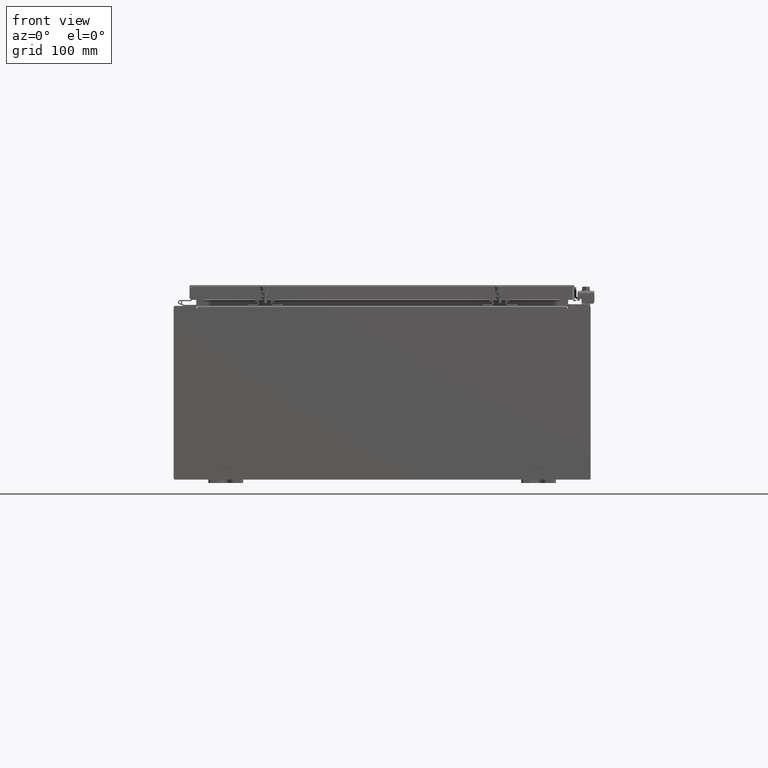
[diagram: clean part render]
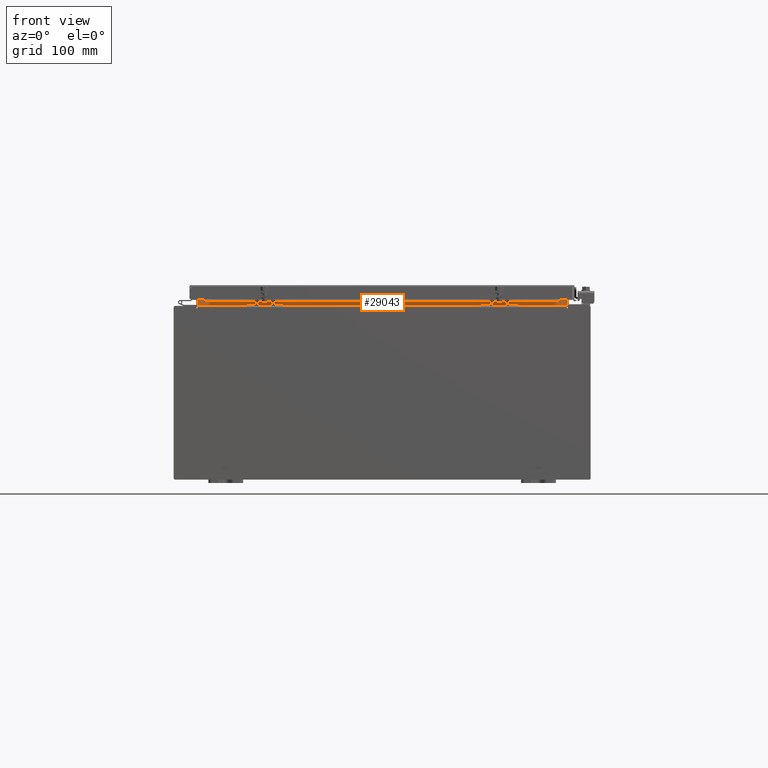
[diagram: same view with one face highlighted and labeled with its STEP entity id]
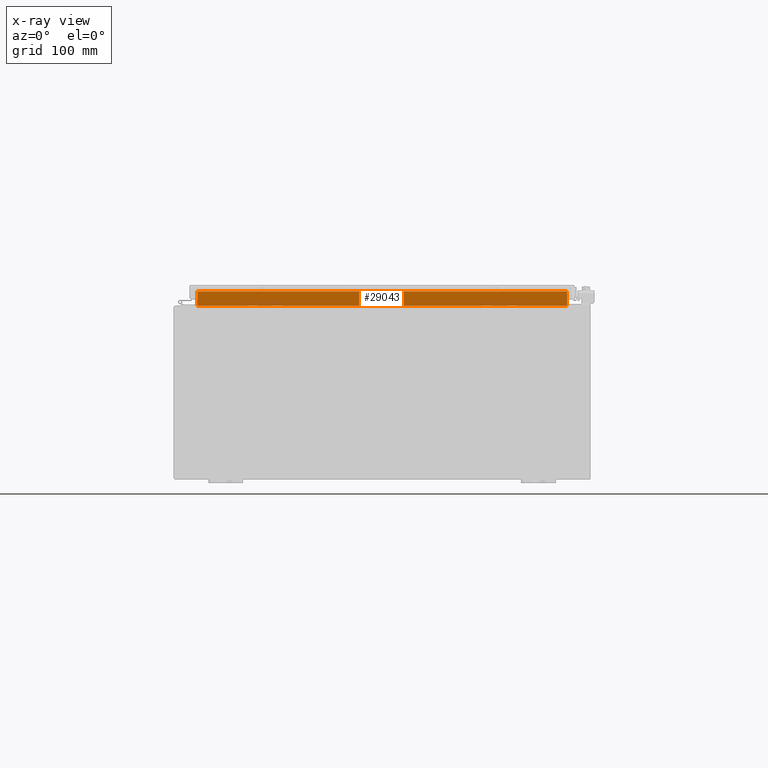
[diagram: x-ray of the same camera — body ghosted, the highlighted face saturated]
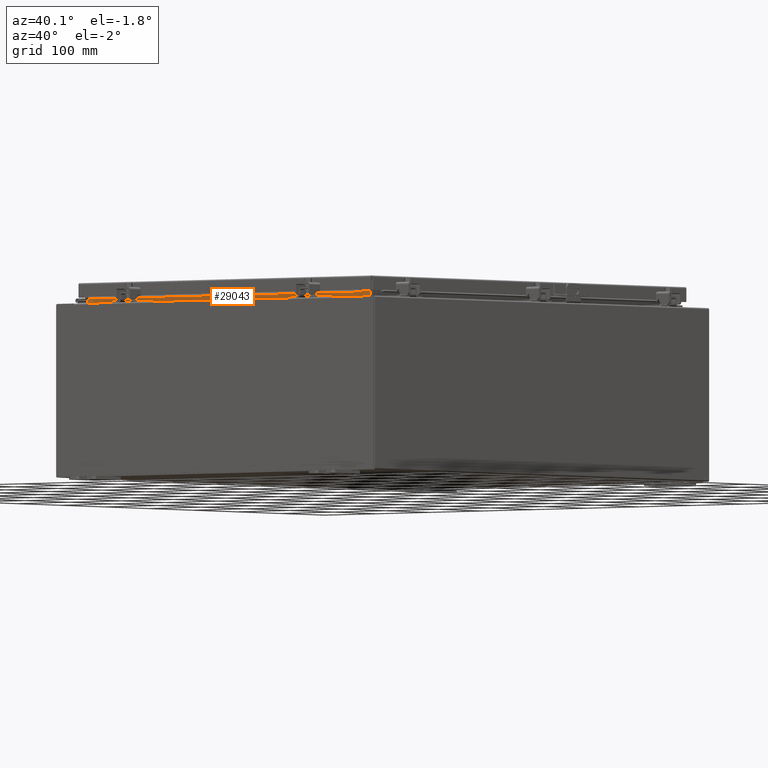
[diagram: same view with one face highlighted and labeled with its STEP entity id]
A machine part, front view. The second image highlights one B-rep face of the part: STEP entity #29043.
The next image is the same camera in x-ray: the body ghosted, the highlighted face saturated — about 0% of this face is hidden behind the body in this view.
A second angle (auxiliary view) of the same face is appended — the face is thin or edge-on in the first view.
In plain terms, the highlighted planar face has unit normal (0, -1, 0).
Its self-contained STEP definition (entity closure, byte-faithful):
#195 = CARTESIAN_POINT ( 'NONE',  ( 10.63720000000000200, -1.300299999999999800, 5.925300000000004500 ) ) ;
#745 = ORIENTED_EDGE ( 'NONE', *, *, #12744, .F. ) ;
#1581 = LINE ( 'NONE', #15482, #31421 ) ;
#3495 = AXIS2_PLACEMENT_3D ( 'NONE', #9310, #29526, #12213 ) ;
#3882 = DIRECTION ( 'NONE',  ( -0.0000000000000000000, -0.0000000000000000000, -1.000000000000000000 ) ) ;
#3886 = VERTEX_POINT ( 'NONE', #15751 ) ;
#3921 = EDGE_CURVE ( 'NONE', #3886, #10573, #10442, .T. ) ;
#8512 = EDGE_LOOP ( 'NONE', ( #14222, #17294, #15377, #745 ) ) ;
#9310 = CARTESIAN_POINT ( 'NONE',  ( 0.0000000000000000000, -1.300299999999999800, 0.0000000000000000000 ) ) ;
#10442 = LINE ( 'NONE', #13575, #31706 ) ;
#10573 = VERTEX_POINT ( 'NONE', #13989 ) ;
#10903 = EDGE_CURVE ( 'NONE', #26112, #3886, #27874, .T. ) ;
#12213 = DIRECTION ( 'NONE',  ( 0.0000000000000000000, -0.0000000000000000000, 1.000000000000000000 ) ) ;
#12744 = EDGE_CURVE ( 'NONE', #30769, #26112, #21486, .T. ) ;
#13575 = CARTESIAN_POINT ( 'NONE',  ( 10.63720000000000200, -1.300299999999999800, 5.837600000000004600 ) ) ;
#13699 = CARTESIAN_POINT ( 'NONE',  ( -10.63720000000000200, -1.300299999999999800, 5.013000000000003500 ) ) ;
#13741 = CARTESIAN_POINT ( 'NONE',  ( 10.63720000000000400, -1.300299999999999800, 5.013000000000003500 ) ) ;
#13989 = CARTESIAN_POINT ( 'NONE',  ( -10.63720000000000200, -1.300299999999999800, 5.837600000000004600 ) ) ;
#14222 = ORIENTED_EDGE ( 'NONE', *, *, #19845, .F. ) ;
#15014 = PLANE ( 'NONE',  #3495 ) ;
#15377 = ORIENTED_EDGE ( 'NONE', *, *, #10903, .F. ) ;
#15482 = CARTESIAN_POINT ( 'NONE',  ( -10.63720000000000200, -1.300299999999999800, 5.000000000000004400 ) ) ;
#15751 = CARTESIAN_POINT ( 'NONE',  ( 10.63720000000000200, -1.300299999999999800, 5.837600000000004600 ) ) ;
#17294 = ORIENTED_EDGE ( 'NONE', *, *, #3921, .F. ) ;
#19845 = EDGE_CURVE ( 'NONE', #10573, #30769, #1581, .T. ) ;
#20439 = DIRECTION ( 'NONE',  ( -0.0000000000000000000, -0.0000000000000000000, 1.000000000000000000 ) ) ;
#20964 = CARTESIAN_POINT ( 'NONE',  ( -10.63720000000000400, -1.300299999999999800, 5.013000000000003500 ) ) ;
#21128 = VECTOR ( 'NONE', #20439, 39.37007874015748100 ) ;
#21486 = LINE ( 'NONE', #13699, #28239 ) ;
#24872 = FACE_OUTER_BOUND ( 'NONE', #8512, .T. ) ;
#26112 = VERTEX_POINT ( 'NONE', #13741 ) ;
#27874 = LINE ( 'NONE', #195, #21128 ) ;
#28239 = VECTOR ( 'NONE', #36849, 39.37007874015748100 ) ;
#29043 = ADVANCED_FACE ( 'NONE', ( #24872 ), #15014, .T. ) ;
#29526 = DIRECTION ( 'NONE',  ( 0.0000000000000000000, 1.000000000000000000, 0.0000000000000000000 ) ) ;
#30769 = VERTEX_POINT ( 'NONE', #20964 ) ;
#31421 = VECTOR ( 'NONE', #3882, 39.37007874015748100 ) ;
#31706 = VECTOR ( 'NONE', #32051, 39.37007874015748100 ) ;
#32051 = DIRECTION ( 'NONE',  ( -1.000000000000000000, -0.0000000000000000000, -0.0000000000000000000 ) ) ;
#36849 = DIRECTION ( 'NONE',  ( 1.000000000000000000, 0.0000000000000000000, 0.0000000000000000000 ) ) ;